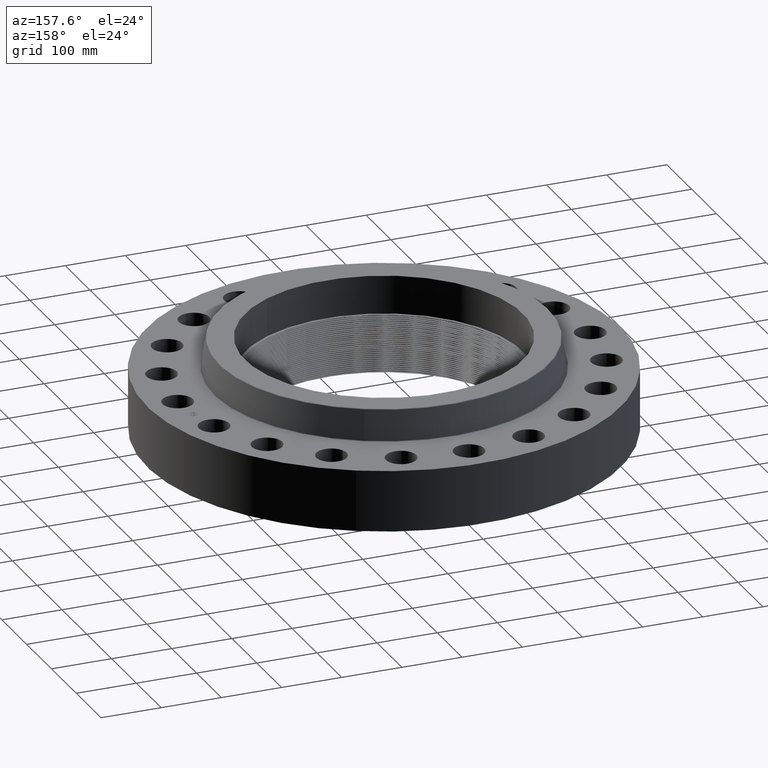
[diagram: clean part render]
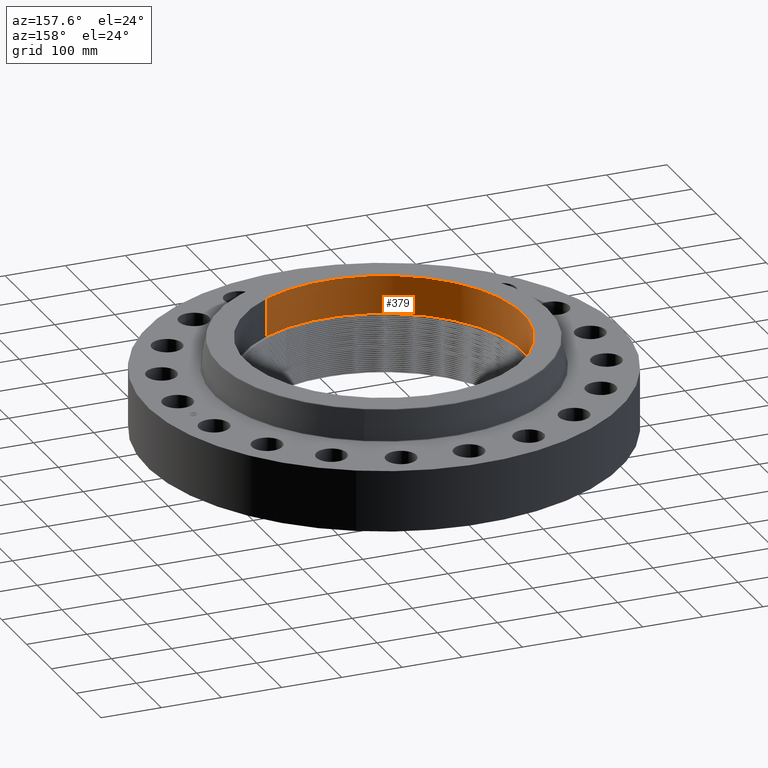
[diagram: same view with one face highlighted and labeled with its STEP entity id]
A machine part, auxiliary view. The second image highlights one B-rep face of the part: STEP entity #379.
In plain terms, the highlighted cylindrical surface (partial cylindrical patch) has radius 231.013 mm, axis along (0, 0, 1).
Its self-contained STEP definition (entity closure, byte-faithful):
#42=AXIS2_PLACEMENT_3D('Circle Axis2P3D',#40,#41,$) ;
#352=AXIS2_PLACEMENT_3D('Cylinder Axis2P3D',#349,#350,#351) ;
#356=AXIS2_PLACEMENT_3D('Circle Axis2P3D',#354,#355,$) ;
#40=CARTESIAN_POINT('Axis2P3D Location',(0.,0.,3.50000000001)) ;
#44=CARTESIAN_POINT('Vertex',(-4.36037527362,7.98161340042,3.50000000001)) ;
#46=CARTESIAN_POINT('Vertex',(4.36037527362,-7.98161340042,3.50000000001)) ;
#349=CARTESIAN_POINT('Axis2P3D Location',(0.,0.,3.50000000001)) ;
#354=CARTESIAN_POINT('Axis2P3D Location',(0.,0.,6.00000000002)) ;
#358=CARTESIAN_POINT('Vertex',(4.36037527362,-7.98161340042,6.00000000002)) ;
#360=CARTESIAN_POINT('Vertex',(-4.36037527362,7.98161340042,6.00000000002)) ;
#363=CARTESIAN_POINT('Line Origine',(4.36037527362,-7.98161340042,4.75000000002)) ;
#368=CARTESIAN_POINT('Line Origine',(-4.36037527362,7.98161340042,4.75000000002)) ;
#41=DIRECTION('Axis2P3D Direction',(0.,0.,-0.0393700787402)) ;
#350=DIRECTION('Axis2P3D Direction',(0.,0.,0.0393700787402)) ;
#351=DIRECTION('Axis2P3D XDirection',(0.0188750212049,-0.0345504945626,0.)) ;
#355=DIRECTION('Axis2P3D Direction',(0.,0.,0.0393700787402)) ;
#364=DIRECTION('Vector Direction',(0.,0.,0.0393700787402)) ;
#369=DIRECTION('Vector Direction',(0.,0.,0.0393700787402)) ;
#365=VECTOR('Line Direction',#364,0.0393700787402) ;
#370=VECTOR('Line Direction',#369,0.0393700787402) ;
#374=ORIENTED_EDGE('',*,*,#362,.F.) ;
#375=ORIENTED_EDGE('',*,*,#367,.F.) ;
#376=ORIENTED_EDGE('',*,*,#48,.F.) ;
#377=ORIENTED_EDGE('',*,*,#372,.T.) ;
#379=ADVANCED_FACE('PartBody',(#378),#353,.F.) ;
#43=CIRCLE('generated circle',#42,9.09500000004) ;
#357=CIRCLE('generated circle',#356,9.09500000004) ;
#353=CYLINDRICAL_SURFACE('generated cylinder',#352,9.09500000004) ;
#48=EDGE_CURVE('',#45,#47,#43,.F.) ;
#362=EDGE_CURVE('',#359,#361,#357,.F.) ;
#367=EDGE_CURVE('',#47,#359,#366,.T.) ;
#372=EDGE_CURVE('',#45,#361,#371,.T.) ;
#373=EDGE_LOOP('',(#374,#375,#376,#377)) ;
#378=FACE_OUTER_BOUND('',#373,.T.) ;
#366=LINE('Line',#363,#365) ;
#371=LINE('Line',#368,#370) ;
#45=VERTEX_POINT('',#44) ;
#47=VERTEX_POINT('',#46) ;
#359=VERTEX_POINT('',#358) ;
#361=VERTEX_POINT('',#360) ;